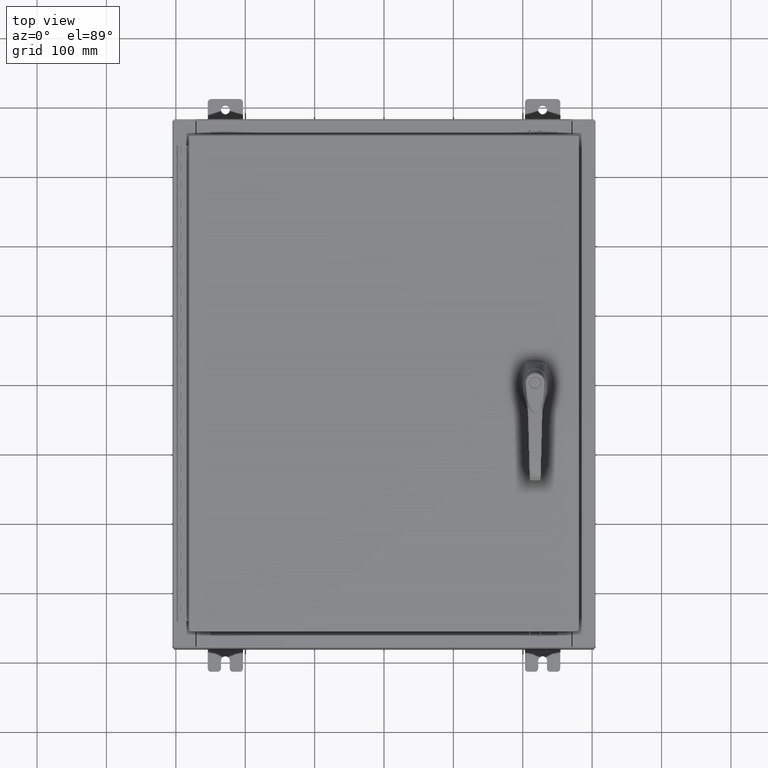
[diagram: clean part render]
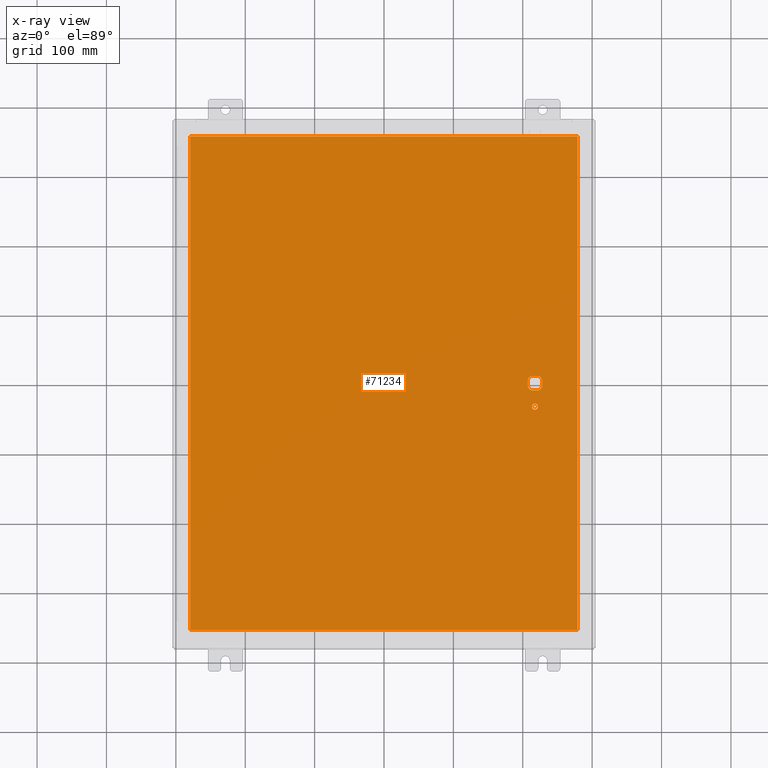
[diagram: x-ray — body ghosted, one internal face saturated and labeled with its STEP entity id]
A machine part, top view, then the same camera in x-ray: the body is ghosted and one INTERNAL B-rep face — a face not visible from any outside direction — is saturated and labeled: STEP entity #71234.
In plain terms, the highlighted planar face has unit normal (0, 0, -1).
Its self-contained STEP definition (entity closure, byte-faithful):
#26 = VERTEX_POINT ( 'NONE', #53286 ) ;
#895 = CARTESIAN_POINT ( 'NONE',  ( 0.0000000000000000000, 0.4029999999999252000, -0.07470000000000003000 ) ) ;
#935 = DIRECTION ( 'NONE',  ( 1.000000000000000000, 0.0000000000000000000, 0.0000000000000000000 ) ) ;
#1062 = ORIENTED_EDGE ( 'NONE', *, *, #102171, .T. ) ;
#1199 = LINE ( 'NONE', #115219, #95740 ) ;
#1436 = FACE_BOUND ( 'NONE', #112338, .T. ) ;
#1761 = ORIENTED_EDGE ( 'NONE', *, *, #48460, .T. ) ;
#2005 = ORIENTED_EDGE ( 'NONE', *, *, #113849, .T. ) ;
#3879 = LINE ( 'NONE', #82550, #92634 ) ;
#4458 = VECTOR ( 'NONE', #64098, 39.37007874015748100 ) ;
#8272 = AXIS2_PLACEMENT_3D ( 'NONE', #68879, #14043, #78068 ) ;
#8755 = CARTESIAN_POINT ( 'NONE',  ( 8.778227370756310300, 0.4029999999999250300, -0.07470000000000003000 ) ) ;
#9156 = VECTOR ( 'NONE', #80585, 39.37007874015748100 ) ;
#10354 = LINE ( 'NONE', #19350, #80473 ) ;
#11563 = LINE ( 'NONE', #28237, #108873 ) ;
#11908 = EDGE_LOOP ( 'NONE', ( #33828, #55208, #64168, #40420 ) ) ;
#12315 = CARTESIAN_POINT ( 'NONE',  ( 10.99030000000000000, -14.00629999999999800, -0.07470000000000000300 ) ) ;
#13724 = LINE ( 'NONE', #58618, #108209 ) ;
#14043 = DIRECTION ( 'NONE',  ( -0.0000000000000000000, -0.0000000000000000000, 1.000000000000000000 ) ) ;
#14427 = CARTESIAN_POINT ( 'NONE',  ( -10.99030000000000000, 14.00629999999999800, -0.07470000000000000300 ) ) ;
#14815 = DIRECTION ( 'NONE',  ( 0.0000000000000000000, 1.000000000000000000, 0.0000000000000000000 ) ) ;
#18476 = CIRCLE ( 'NONE', #22273, 0.4499999999999156900 ) ;
#19035 = DIRECTION ( 'NONE',  ( -1.000000000000000000, -0.0000000000000000000, -0.0000000000000000000 ) ) ;
#19262 = VERTEX_POINT ( 'NONE', #53671 ) ;
#19350 = CARTESIAN_POINT ( 'NONE',  ( 0.0000000000000000000, -0.4029999999999252000, -0.07470000000000003000 ) ) ;
#19698 = CARTESIAN_POINT ( 'NONE',  ( 0.0000000000000000000, 0.0000000000000000000, -0.07470000000000000300 ) ) ;
#20056 = FACE_OUTER_BOUND ( 'NONE', #11908, .T. ) ;
#20072 = VERTEX_POINT ( 'NONE', #14427 ) ;
#21336 = AXIS2_PLACEMENT_3D ( 'NONE', #95584, #40775, #104757 ) ;
#22106 = DIRECTION ( 'NONE',  ( 2.728745808672812900E-015, -1.000000000000000000, 0.0000000000000000000 ) ) ;
#22273 = AXIS2_PLACEMENT_3D ( 'NONE', #94599, #39824, #103770 ) ;
#22998 = EDGE_CURVE ( 'NONE', #106231, #26, #100761, .T. ) ;
#26229 = ORIENTED_EDGE ( 'NONE', *, *, #22998, .T. ) ;
#28237 = CARTESIAN_POINT ( 'NONE',  ( 10.99030000000000000, 14.00629999999999800, -0.07470000000000019700 ) ) ;
#29548 = DIRECTION ( 'NONE',  ( -0.0000000000000000000, -0.0000000000000000000, 1.000000000000000000 ) ) ;
#29756 = EDGE_CURVE ( 'NONE', #97198, #20072, #11563, .T. ) ;
#31231 = VERTEX_POINT ( 'NONE', #80788 ) ;
#33718 = VERTEX_POINT ( 'NONE', #60283 ) ;
#33828 = ORIENTED_EDGE ( 'NONE', *, *, #75244, .F. ) ;
#35814 = DIRECTION ( 'NONE',  ( -0.0000000000000000000, -0.0000000000000000000, 1.000000000000000000 ) ) ;
#38154 = DIRECTION ( 'NONE',  ( -1.000000000000000000, 0.0000000000000000000, -0.0000000000000000000 ) ) ;
#39824 = DIRECTION ( 'NONE',  ( -0.0000000000000000000, -0.0000000000000000000, 1.000000000000000000 ) ) ;
#40420 = ORIENTED_EDGE ( 'NONE', *, *, #29756, .F. ) ;
#40775 = DIRECTION ( 'NONE',  ( -0.0000000000000000000, -0.0000000000000000000, 1.000000000000000000 ) ) ;
#41259 = VERTEX_POINT ( 'NONE', #59096 ) ;
#42433 = EDGE_LOOP ( 'NONE', ( #103907, #1062 ) ) ;
#42434 = VERTEX_POINT ( 'NONE', #96934 ) ;
#43797 = CARTESIAN_POINT ( 'NONE',  ( 8.577999999999999400, -1.338000000000000100, -0.07470000000000003000 ) ) ;
#44107 = DIRECTION ( 'NONE',  ( 1.000000000000000000, -0.0000000000000000000, -0.0000000000000000000 ) ) ;
#48460 = EDGE_CURVE ( 'NONE', #31231, #106231, #18476, .T. ) ;
#53030 = DIRECTION ( 'NONE',  ( -1.000000000000000000, 0.0000000000000000000, 0.0000000000000000000 ) ) ;
#53286 = CARTESIAN_POINT ( 'NONE',  ( 8.175000000000073500, -0.2002273707563079800, -0.07470000000000003000 ) ) ;
#53671 = CARTESIAN_POINT ( 'NONE',  ( 8.980999999999925300, -0.2002273707563075900, -0.07470000000000003000 ) ) ;
#55208 = ORIENTED_EDGE ( 'NONE', *, *, #91951, .F. ) ;
#55993 = AXIS2_PLACEMENT_3D ( 'NONE', #84393, #29548, #93608 ) ;
#56200 = PLANE ( 'NONE',  #111632 ) ;
#56860 = AXIS2_PLACEMENT_3D ( 'NONE', #90610, #35814, #99783 ) ;
#58618 = CARTESIAN_POINT ( 'NONE',  ( 8.980999999999925300, 2.450686610769032800E-014, -0.07470000000000003000 ) ) ;
#59096 = CARTESIAN_POINT ( 'NONE',  ( 8.749500000000001200, -1.338000000000000100, -0.07470000000000003000 ) ) ;
#59832 = EDGE_CURVE ( 'NONE', #85345, #31231, #68822, .T. ) ;
#60112 = ORIENTED_EDGE ( 'NONE', *, *, #77809, .T. ) ;
#60283 = CARTESIAN_POINT ( 'NONE',  ( 8.980999999999925300, 0.2002273707563080300, -0.07470000000000003000 ) ) ;
#63169 = VERTEX_POINT ( 'NONE', #78867 ) ;
#63798 = ORIENTED_EDGE ( 'NONE', *, *, #75558, .T. ) ;
#64098 = DIRECTION ( 'NONE',  ( -1.000000000000000000, 0.0000000000000000000, 0.0000000000000000000 ) ) ;
#64168 = ORIENTED_EDGE ( 'NONE', *, *, #104953, .F. ) ;
#64615 = VECTOR ( 'NONE', #44107, 39.37007874015748100 ) ;
#68822 = LINE ( 'NONE', #895, #4458 ) ;
#68879 = CARTESIAN_POINT ( 'NONE',  ( 8.577999999999999400, -1.338000000000000100, -0.07470000000000003000 ) ) ;
#69902 = EDGE_CURVE ( 'NONE', #41259, #73761, #114464, .T. ) ;
#71234 = ADVANCED_FACE ( 'NONE', ( #93100, #20056, #1436 ), #56200, .T. ) ;
#71304 = CARTESIAN_POINT ( 'NONE',  ( -10.99029999999999600, -14.00629999999999800, -0.07470000000000019700 ) ) ;
#73362 = DIRECTION ( 'NONE',  ( 0.0000000000000000000, -1.000000000000000000, 0.0000000000000000000 ) ) ;
#73761 = VERTEX_POINT ( 'NONE', #100213 ) ;
#75244 = EDGE_CURVE ( 'NONE', #85530, #97198, #1199, .T. ) ;
#75558 = EDGE_CURVE ( 'NONE', #33718, #85345, #102820, .T. ) ;
#76755 = CIRCLE ( 'NONE', #56860, 0.4499999999999156900 ) ;
#77809 = EDGE_CURVE ( 'NONE', #42434, #19262, #76755, .T. ) ;
#78052 = EDGE_CURVE ( 'NONE', #33718, #19262, #13724, .T. ) ;
#78068 = DIRECTION ( 'NONE',  ( -1.000000000000000000, 0.0000000000000000000, 0.0000000000000000000 ) ) ;
#78867 = CARTESIAN_POINT ( 'NONE',  ( 8.377772629243690300, -0.4029999999999250300, -0.07470000000000003000 ) ) ;
#80070 = CIRCLE ( 'NONE', #8272, 0.1715000000000011500 ) ;
#80473 = VECTOR ( 'NONE', #935, 39.37007874015748100 ) ;
#80585 = DIRECTION ( 'NONE',  ( 0.0000000000000000000, -1.000000000000000000, 0.0000000000000000000 ) ) ;
#80788 = CARTESIAN_POINT ( 'NONE',  ( 8.377772629243690300, 0.4029999999999252000, -0.07470000000000003000 ) ) ;
#80988 = CARTESIAN_POINT ( 'NONE',  ( 8.175000000000073500, 0.0000000000000000000, -0.07470000000000003000 ) ) ;
#81245 = CIRCLE ( 'NONE', #21336, 0.4499999999999156900 ) ;
#81670 = AXIS2_PLACEMENT_3D ( 'NONE', #43797, #107781, #53030 ) ;
#82550 = CARTESIAN_POINT ( 'NONE',  ( -10.99030000000000000, 14.00630000000000100, -0.07470000000000019700 ) ) ;
#84393 = CARTESIAN_POINT ( 'NONE',  ( 8.577999999999999400, 0.0000000000000000000, -0.07470000000000003000 ) ) ;
#85345 = VERTEX_POINT ( 'NONE', #8755 ) ;
#85530 = VERTEX_POINT ( 'NONE', #12315 ) ;
#88925 = LINE ( 'NONE', #71304, #64615 ) ;
#90610 = CARTESIAN_POINT ( 'NONE',  ( 8.577999999999999400, 0.0000000000000000000, -0.07470000000000003000 ) ) ;
#91569 = CARTESIAN_POINT ( 'NONE',  ( 10.99030000000000000, 14.00629999999999800, -0.07470000000000000300 ) ) ;
#91951 = EDGE_CURVE ( 'NONE', #101946, #85530, #88925, .T. ) ;
#92634 = VECTOR ( 'NONE', #73362, 39.37007874015748100 ) ;
#92961 = DIRECTION ( 'NONE',  ( 0.0000000000000000000, 0.0000000000000000000, -1.000000000000000000 ) ) ;
#92970 = CARTESIAN_POINT ( 'NONE',  ( -10.99030000000000000, -14.00629999999999600, -0.07470000000000000300 ) ) ;
#93100 = FACE_BOUND ( 'NONE', #42433, .T. ) ;
#93608 = DIRECTION ( 'NONE',  ( -1.000000000000000000, 0.0000000000000000000, 0.0000000000000000000 ) ) ;
#94599 = CARTESIAN_POINT ( 'NONE',  ( 8.577999999999999400, 0.0000000000000000000, -0.07470000000000003000 ) ) ;
#94707 = ORIENTED_EDGE ( 'NONE', *, *, #78052, .F. ) ;
#95584 = CARTESIAN_POINT ( 'NONE',  ( 8.577999999999999400, 0.0000000000000000000, -0.07470000000000003000 ) ) ;
#95740 = VECTOR ( 'NONE', #14815, 39.37007874015748100 ) ;
#96934 = CARTESIAN_POINT ( 'NONE',  ( 8.778227370756310300, -0.4029999999999252000, -0.07470000000000003000 ) ) ;
#97198 = VERTEX_POINT ( 'NONE', #91569 ) ;
#97207 = ORIENTED_EDGE ( 'NONE', *, *, #105646, .T. ) ;
#99783 = DIRECTION ( 'NONE',  ( -1.000000000000000000, 1.776356839400251300E-015, 0.0000000000000000000 ) ) ;
#100213 = CARTESIAN_POINT ( 'NONE',  ( 8.406499999999999400, -1.338000000000000100, -0.07470000000000003000 ) ) ;
#100761 = LINE ( 'NONE', #80988, #9156 ) ;
#101946 = VERTEX_POINT ( 'NONE', #92970 ) ;
#102171 = EDGE_CURVE ( 'NONE', #73761, #41259, #80070, .T. ) ;
#102820 = CIRCLE ( 'NONE', #55993, 0.4499999999999156900 ) ;
#103770 = DIRECTION ( 'NONE',  ( -1.000000000000000000, 0.0000000000000000000, 0.0000000000000000000 ) ) ;
#103809 = CARTESIAN_POINT ( 'NONE',  ( 8.175000000000073500, 0.2002273707563080300, -0.07470000000000003000 ) ) ;
#103907 = ORIENTED_EDGE ( 'NONE', *, *, #69902, .T. ) ;
#104757 = DIRECTION ( 'NONE',  ( -1.000000000000000000, 8.881784197001256300E-016, 0.0000000000000000000 ) ) ;
#104953 = EDGE_CURVE ( 'NONE', #20072, #101946, #3879, .T. ) ;
#105646 = EDGE_CURVE ( 'NONE', #26, #63169, #81245, .T. ) ;
#106231 = VERTEX_POINT ( 'NONE', #103809 ) ;
#107781 = DIRECTION ( 'NONE',  ( -0.0000000000000000000, -0.0000000000000000000, 1.000000000000000000 ) ) ;
#108209 = VECTOR ( 'NONE', #22106, 39.37007874015748100 ) ;
#108873 = VECTOR ( 'NONE', #19035, 39.37007874015748100 ) ;
#111632 = AXIS2_PLACEMENT_3D ( 'NONE', #19698, #92961, #38154 ) ;
#112338 = EDGE_LOOP ( 'NONE', ( #60112, #94707, #63798, #116630, #1761, #26229, #97207, #2005 ) ) ;
#113849 = EDGE_CURVE ( 'NONE', #63169, #42434, #10354, .T. ) ;
#114464 = CIRCLE ( 'NONE', #81670, 0.1715000000000011500 ) ;
#115219 = CARTESIAN_POINT ( 'NONE',  ( 10.99030000000000000, -14.00629999999999800, -0.07470000000000019700 ) ) ;
#116630 = ORIENTED_EDGE ( 'NONE', *, *, #59832, .T. ) ;